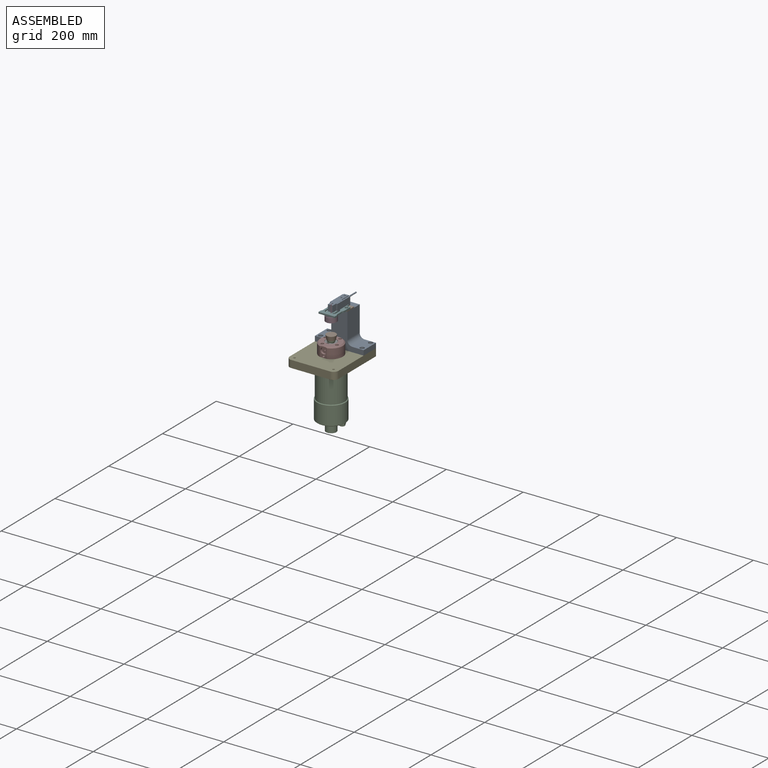
[diagram: assembled view]
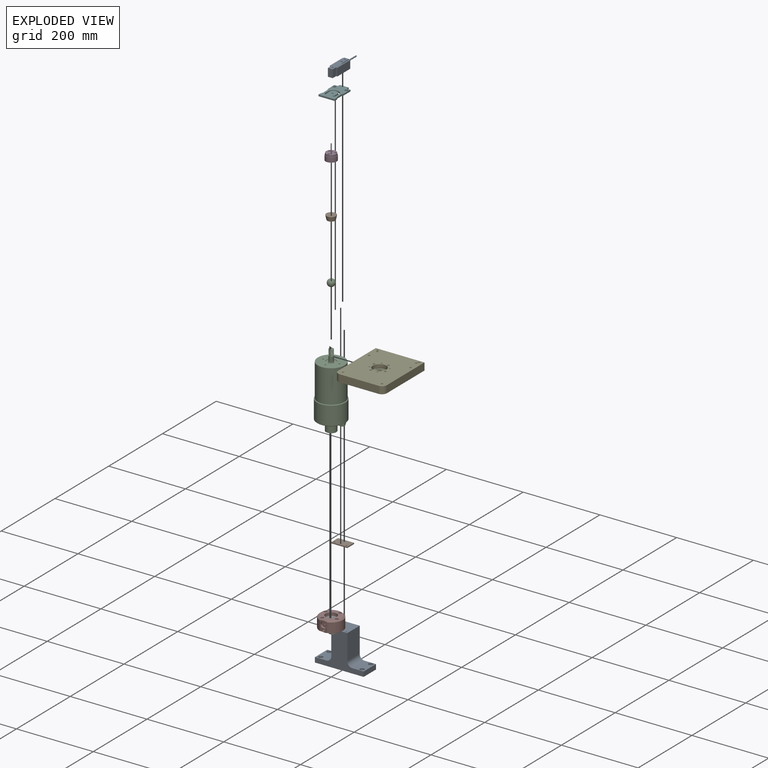
[diagram: exploded view]
GUIDED TOUR — MATED ASSEMBLY WITH SUBASSEMBLIES (Onshape document e1350d4f7f042d9ee2ff2963, AutoMate assembly e1350d4f7f042d9ee2ff2963_89f4badd9b98fbfe98499b85_08aeff5780a35d646b1b420d_default)

This assembly has 15 component occurrences arranged in 11 top-level units: 10 individual components plus 1 subassembly (S0). The tour has two levels: first the top level, where each subassembly is treated as one rigid unit; then each subassembly is toured internally in its own section (nesting deeper than one subassembly level is flattened into its subassembly's section).

Components are labeled P0..P14 across the whole record; subassembly units are labeled S0..S0. A mate is a constraint between two units; its type names the relative motion it leaves free:
  FASTENED — locks the two components together rigidly (no relative motion),
  SLIDER — leaves translation along the listed axis free.
Axis/direction vectors are unit vectors and 'through' points are millimeter coordinates, both in the assembly's world frame.

TOP-LEVEL MATES (between units; each subassembly's internal mates are listed in its own section)
  1. FASTENED "Fastened 5": P14 <-> P8, direction (0.000, 0.000, 1.000) through (0.00, 0.00, 51.94) mm
  2. FASTENED "Fastened 3": P4 <-> P10, direction (0.000, 0.000, 1.000) through (0.00, 0.00, 19.05) mm
  3. FASTENED "Fastened 1": P2 <-> P4, direction (0.000, 0.000, 1.000) through (0.00, 0.00, 0.00) mm
  4. SLIDER "Slider 1": P1 <-> P14, axis (0.000, 0.000, -1.000) through (0.00, 0.00, 51.94) mm
  5. FASTENED "Fastened 4": P10 <-> P8, direction (0.000, 0.000, 1.000) through (0.00, 0.00, 47.63) mm
  6. FASTENED "Fastened 6": S0 <-> P7, direction (0.000, 0.000, 1.000) through (0.00, 4.76, 113.61) mm
  7. FASTENED "Fastened 9": P13 <-> P11, direction (0.000, 0.000, -1.000) through (-15.50, 34.76, 110.88) mm
  8. FASTENED "Fastened 8": P11 <-> P0, direction (0.000, 0.000, 1.000) through (0.00, 38.04, 110.88) mm
  9. FASTENED "Fastened 7": S0 <-> P0, direction (0.000, 0.000, 1.000) through (0.00, 4.76, 113.61) mm

TOP-LEVEL ASSEMBLY ORDER
  1. P2 — the base component [order heuristic]
  2. P4 [order verified]
  3. P8 — core [order heuristic]
  4. P10 — core [order heuristic]
  5. P14 [order verified]
  6. P11 [order verified]
  7. P1 [order verified]
  8. S0 [order verified]
  9. P13 [order verified]
  10. P7 [order verified]
  11. P0 [order verified]
(P1 verified with a relaxed clearance tolerance: the source model stores slight part interference there.)
Order-tag legend:
  [order verified] — this step's position reverses a verified removal order: the component was checked to insert without passing through the ones already placed.
  [order heuristic] — the first 3 components form the assembly's core: parts whose collision-free extraction could not be verified, listed in mate-graph order.

Of the 15 component occurrences, 2 carry the full construction recipe — the FeatureScript program that regenerates the part's solid from scratch; the rest are supplied as boundary geometry only. Each toured unit is shown spotlighted twice — assembled, then exploded with a leader line back to its socket (green = recipe-attached component, orange = geometry-only, blue = subassembly unit; the rest desaturated gray).
NOTE — document 2 of 2 of this assembly tour. The two overview renders and the header above are repeated from document 1; the component sections below continue where the previous document stopped.
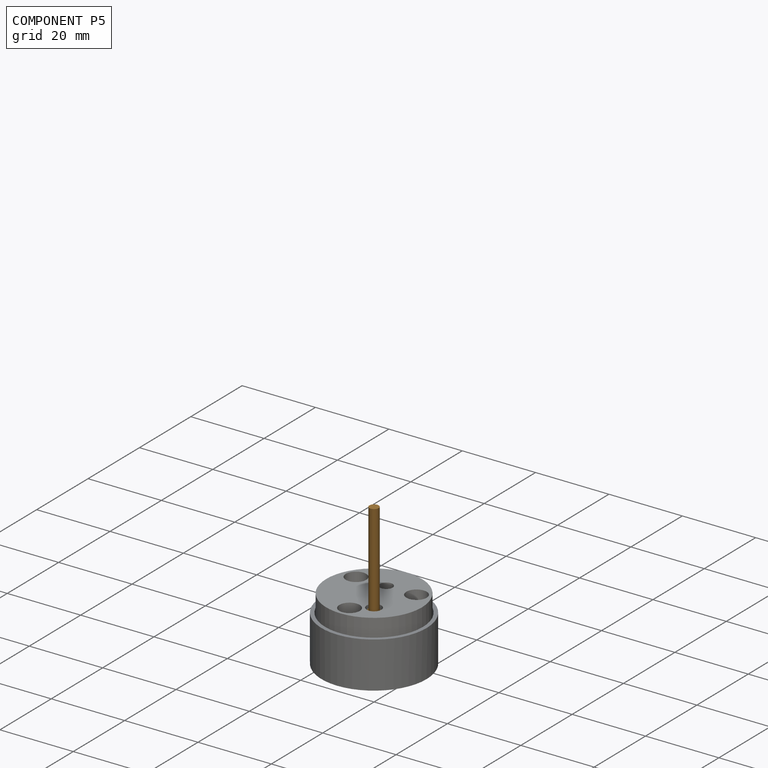
[diagram: component P5 — assembled]
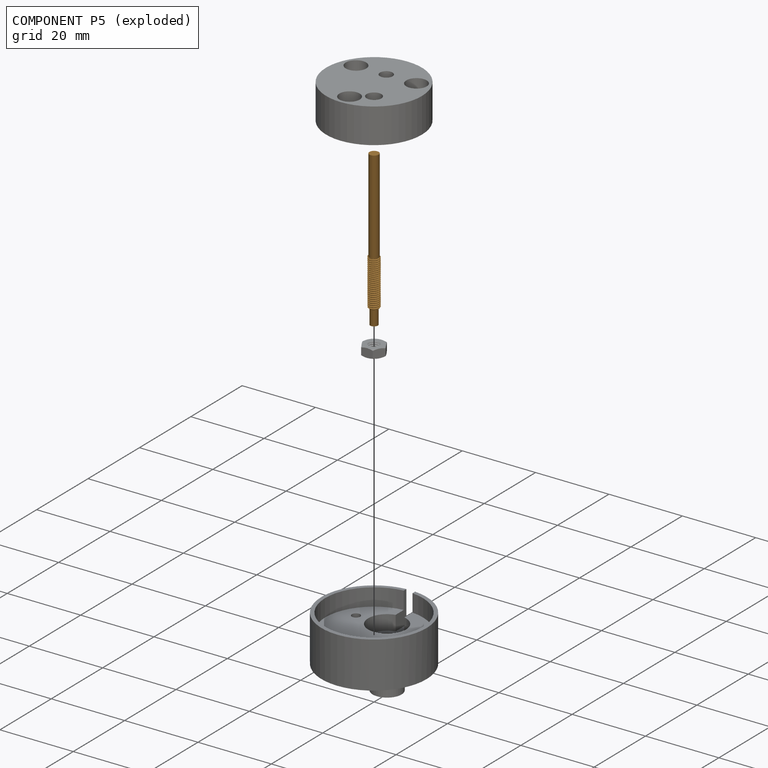
[diagram: component P5 — exploded]
COMPONENT P5 — geometry summary (no construction recipe available for this part):
  bounding box: 42.3 x 3.1 x 3.1 mm
  B-rep topology: 1 solid, 13 faces, 256 edges
  volume: 216 mm^3 (53% of its bounding box)
  symmetry: revolution-symmetric about the z axis through its bounding-box center; mirror-symmetric across its x mid-plane, y mid-plane
Held by: FASTENED mate "Fastened 3" to P9; FASTENED mate "Fastened 3" to P9.
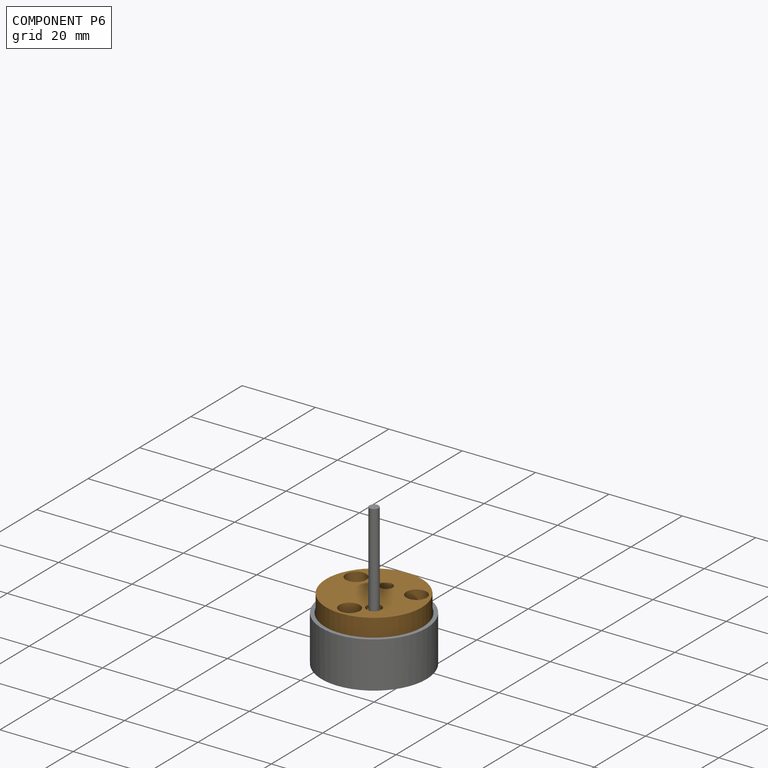
[diagram: component P6 — assembled]
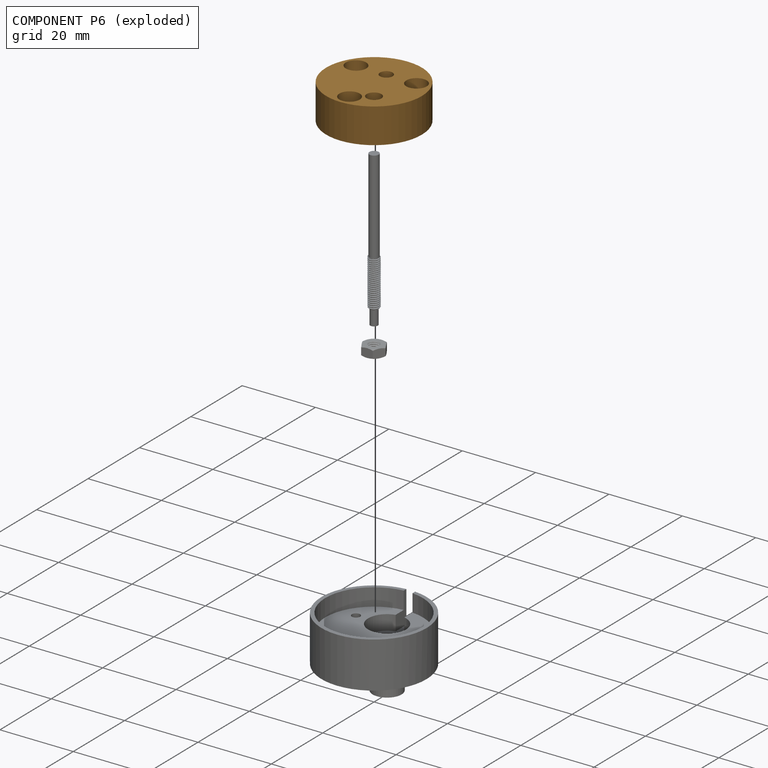
[diagram: component P6 — exploded]
COMPONENT P6 — geometry summary (no construction recipe available for this part):
  bounding box: 26.1 x 26.1 x 9.5 mm
  B-rep topology: 1 solid, 17 faces, 65 edges
  volume: 4490 mm^3 (69% of its bounding box)
Held by: FASTENED mate "Fastened 5" to P9; FASTENED mate "Fastened 5" to P9.
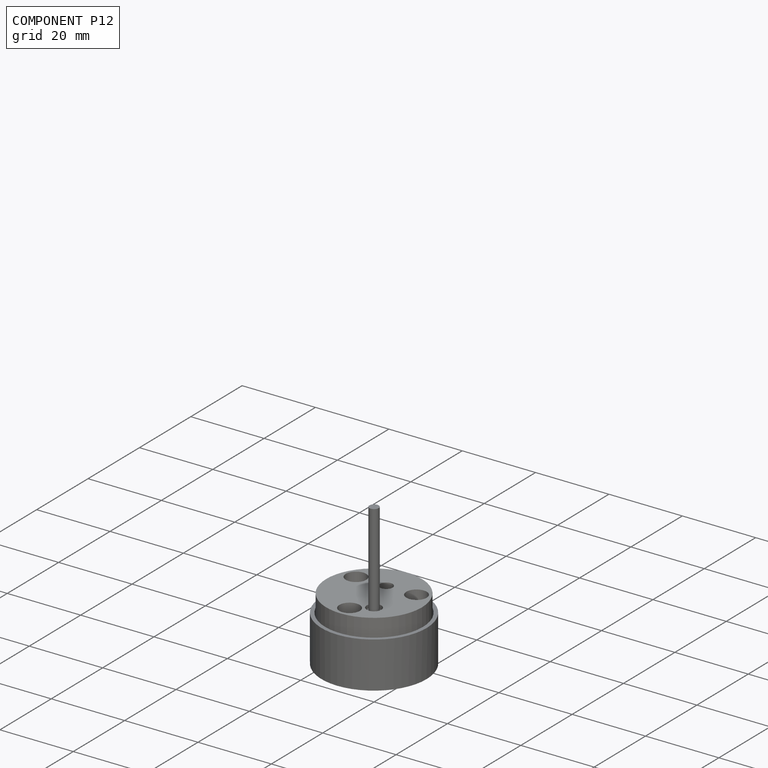
[diagram: component P12 — assembled]
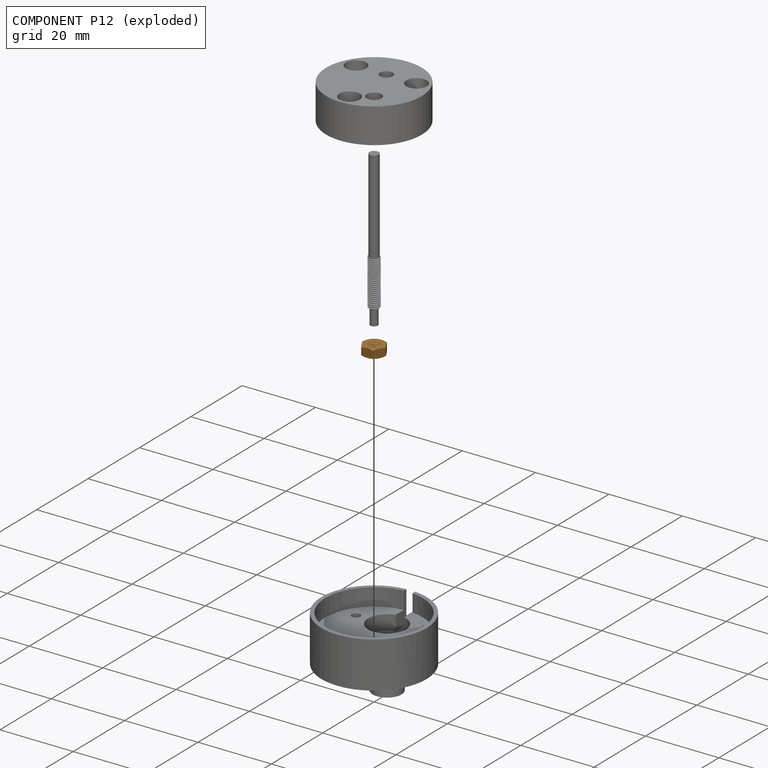
[diagram: component P12 — exploded]
COMPONENT P12 — geometry summary (no construction recipe available for this part):
  bounding box: 6.6 x 6.6 x 3.1 mm
  B-rep topology: 1 solid, 26 faces, 160 edges
  volume: 51 mm^3 (38% of its bounding box)
Held by: FASTENED mate "Fastened 4" to P9; FASTENED mate "Fastened 4" to P9.
PROVENANCE & LICENSES
Assembly (occurrences, transforms, mates, per-part STEP geometry): AutoMate dataset, Zenodo record 7776208, CC0.
Construction recipes: CADFS (HuggingFace VladPyatov/CADFS, CC-BY-4.0, layered over the ABC dataset), FeatureScript reconstruction programs keyed by ABC model id.
Join: ABC meta listings map ABC model id -> Onshape documentId; within a shared document, parts are matched by geometric signature (bounding-box dims + volume at 0.1% relative tolerance, exact B-rep face/solid counts).
Verification: 2 of this assembly's 15 components carry a recipe attachment, and every attachment is mesh-verified: the CADFS STEP and the AutoMate member STEP were compared as meshes in their shared local frame (symmetric sampled-point-to-mesh distance); worst across the 2 attachments: below the mesh-comparison resolution (tessellation chordal tolerance ~0.118 mm) on a 78 mm part.
Renders: orthographic iso camera (az 35 / el 25); the floor grid conveys scale (grid pitch printed in each image; no ruler). In the exploded view each component is displaced by its stored offset vector: the offsets alone carry the explosion direction (mate normal/axis signs are not orientation cues and do not encode it), and separation distances are assigned per mate-chain, not proportionally to assembly-order depth.
